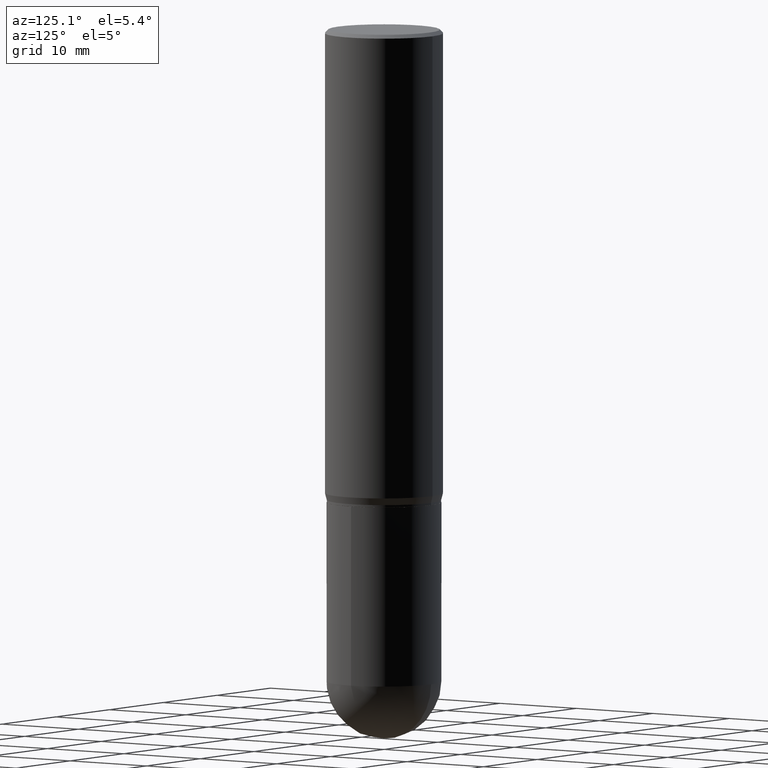
[diagram: clean part render]
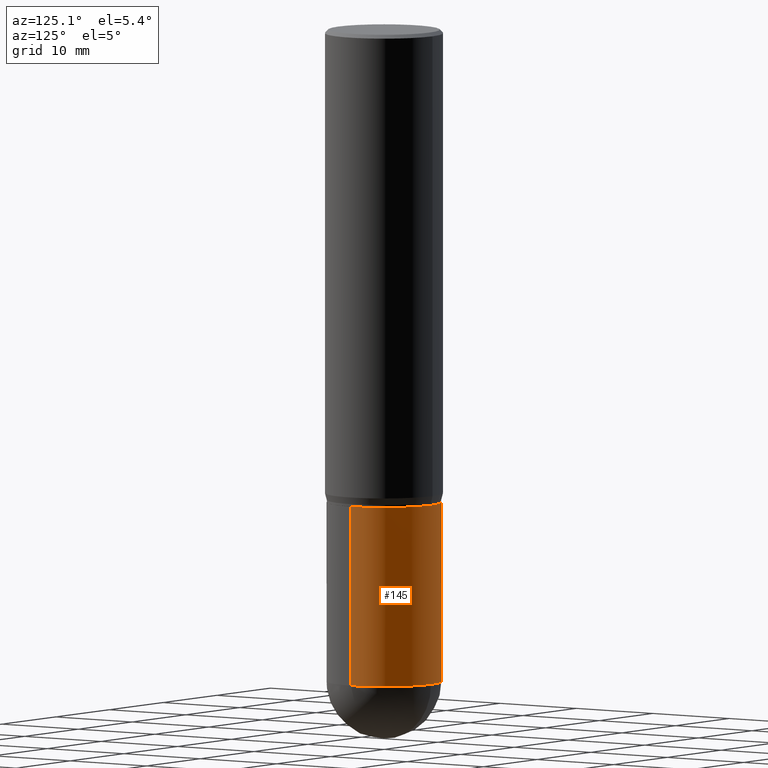
[diagram: same view with one face highlighted and labeled with its STEP entity id]
A machine part, auxiliary view. The second image highlights one B-rep face of the part: STEP entity #145.
In plain terms, the highlighted cylindrical surface (partial cylindrical patch) has radius 6.1519 mm, axis along (-0, 0, 1).
Its self-contained STEP definition (entity closure, byte-faithful):
#1 = EDGE_CURVE ( 'NONE', #58, #331, #147, .T. ) ;
#13 = CARTESIAN_POINT ( 'NONE',  ( 0.2422000000000000264, -1.691273560535613991E-15, 1.181010015097775692E-29 ) ) ;
#19 = EDGE_CURVE ( 'NONE', #329, #92, #245, .T. ) ;
#25 = ORIENTED_EDGE ( 'NONE', *, *, #123, .F. ) ;
#36 = CARTESIAN_POINT ( 'NONE',  ( 4.890937612370273754E-29, -6.982962677686291954E-15, -2.000000000000000444 ) ) ;
#58 = VERTEX_POINT ( 'NONE', #165 ) ;
#76 = CARTESIAN_POINT ( 'NONE',  ( -0.2422000000000000264, 1.720934506010962838E-15, -1.191366078859738205E-29 ) ) ;
#90 = DIRECTION ( 'NONE',  ( 1.000000000000000000, -6.982962677686266711E-15, 4.876176775795935232E-29 ) ) ;
#92 = VERTEX_POINT ( 'NONE', #481 ) ;
#99 = AXIS2_PLACEMENT_3D ( 'NONE', #338, #195, #261 ) ;
#109 = EDGE_LOOP ( 'NONE', ( #486, #208, #424, #25, #333 ) ) ;
#123 = EDGE_CURVE ( 'NONE', #329, #137, #485, .T. ) ;
#135 = FACE_OUTER_BOUND ( 'NONE', #109, .T. ) ;
#137 = VERTEX_POINT ( 'NONE', #151 ) ;
#145 = ADVANCED_FACE ( 'NONE', ( #135 ), #221, .T. ) ;
#147 = LINE ( 'NONE', #76, #211 ) ;
#151 = CARTESIAN_POINT ( 'NONE',  ( 0.2422000000000000264, -8.674236238221906143E-15, -2.000000000000000444 ) ) ;
#165 = CARTESIAN_POINT ( 'NONE',  ( -0.2422000000000000264, -6.584950450963000136E-15, -2.757800000000000473 ) ) ;
#168 = DIRECTION ( 'NONE',  ( -2.445468806185136877E-29, 3.491481338843145188E-15, 1.000000000000000000 ) ) ;
#178 = AXIS2_PLACEMENT_3D ( 'NONE', #332, #409, #90 ) ;
#195 = DIRECTION ( 'NONE',  ( -2.445468806185136597E-29, 3.491481338843145583E-15, 1.000000000000000000 ) ) ;
#202 = CARTESIAN_POINT ( 'NONE',  ( -0.2422000000000000264, -6.584950450962997769E-15, -2.000000000000000444 ) ) ;
#208 = ORIENTED_EDGE ( 'NONE', *, *, #1, .T. ) ;
#211 = VECTOR ( 'NONE', #273, 39.37007874015748143 ) ;
#218 = DIRECTION ( 'NONE',  ( 1.000000000000000000, -6.982962677686265922E-15, 0.000000000000000000 ) ) ;
#221 = CYLINDRICAL_SURFACE ( 'NONE', #178, 0.2422000000000000264 ) ;
#228 = EDGE_CURVE ( 'NONE', #137, #331, #394, .T. ) ;
#236 = CARTESIAN_POINT ( 'NONE',  ( 0.2422000000000000264, -9.997158517509574401E-15, -2.757800000000000473 ) ) ;
#245 = CIRCLE ( 'NONE', #99, 0.2422000000000000264 ) ;
#246 = CIRCLE ( 'NONE', #483, 0.2422000000000000264 ) ;
#261 = DIRECTION ( 'NONE',  ( 1.000000000000000000, -6.982962677686265922E-15, 0.000000000000000000 ) ) ;
#273 = DIRECTION ( 'NONE',  ( -2.445468806185136877E-29, 3.491481338843145188E-15, 1.000000000000000000 ) ) ;
#305 = DIRECTION ( 'NONE',  ( 1.000000000000000000, -6.982962677686265922E-15, 0.000000000000000000 ) ) ;
#329 = VERTEX_POINT ( 'NONE', #236 ) ;
#331 = VERTEX_POINT ( 'NONE', #202 ) ;
#332 = CARTESIAN_POINT ( 'NONE',  ( 0.000000000000000000, 0.000000000000000000, 0.000000000000000000 ) ) ;
#333 = ORIENTED_EDGE ( 'NONE', *, *, #19, .T. ) ;
#338 = CARTESIAN_POINT ( 'NONE',  ( 6.744113873697370654E-29, -9.628807236261628470E-15, -2.757800000000000473 ) ) ;
#394 = CIRCLE ( 'NONE', #457, 0.2422000000000000264 ) ;
#409 = DIRECTION ( 'NONE',  ( -2.445468806185136597E-29, 3.491481338843145583E-15, 1.000000000000000000 ) ) ;
#418 = DIRECTION ( 'NONE',  ( -2.445468806185136597E-29, 3.491481338843145583E-15, 1.000000000000000000 ) ) ;
#424 = ORIENTED_EDGE ( 'NONE', *, *, #228, .F. ) ;
#435 = EDGE_CURVE ( 'NONE', #92, #58, #246, .T. ) ;
#447 = VECTOR ( 'NONE', #168, 39.37007874015748143 ) ;
#457 = AXIS2_PLACEMENT_3D ( 'NONE', #36, #502, #305 ) ;
#464 = CARTESIAN_POINT ( 'NONE',  ( 6.744113873697370654E-29, -9.628807236261628470E-15, -2.757800000000000473 ) ) ;
#481 = CARTESIAN_POINT ( 'NONE',  ( 1.691273560535681242E-15, 0.2421999999999903952, -2.757800000000001361 ) ) ;
#483 = AXIS2_PLACEMENT_3D ( 'NONE', #464, #418, #218 ) ;
#485 = LINE ( 'NONE', #13, #447 ) ;
#486 = ORIENTED_EDGE ( 'NONE', *, *, #435, .T. ) ;
#502 = DIRECTION ( 'NONE',  ( -2.445468806185136597E-29, 3.491481338843145583E-15, 1.000000000000000000 ) ) ;